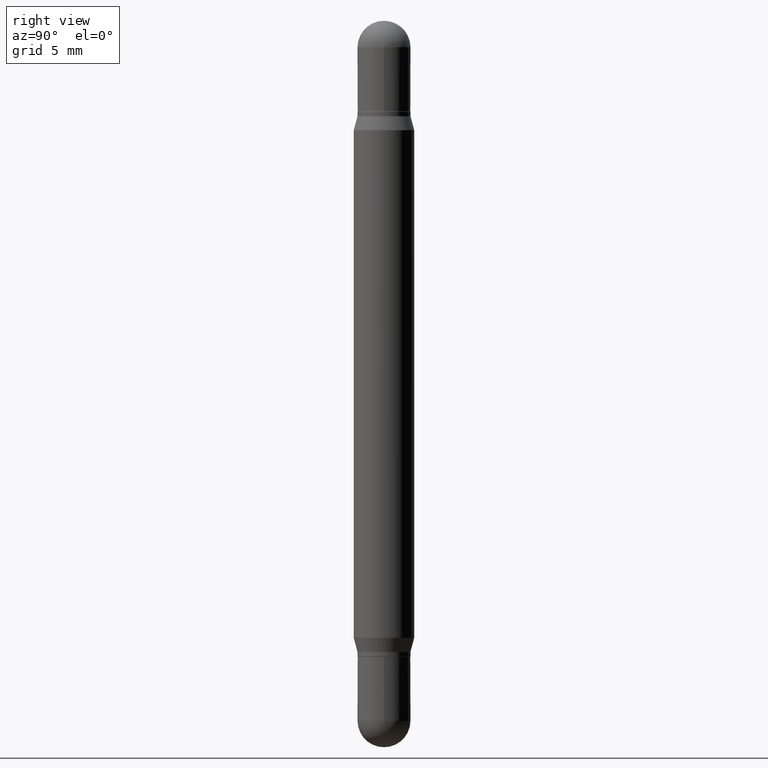
[diagram: clean part render]
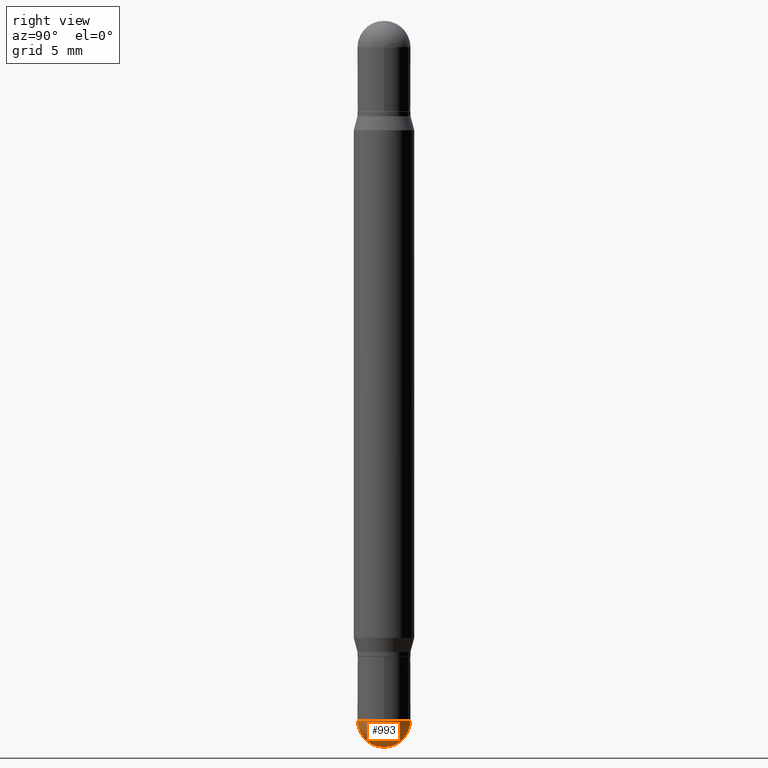
[diagram: same view with one face highlighted and labeled with its STEP entity id]
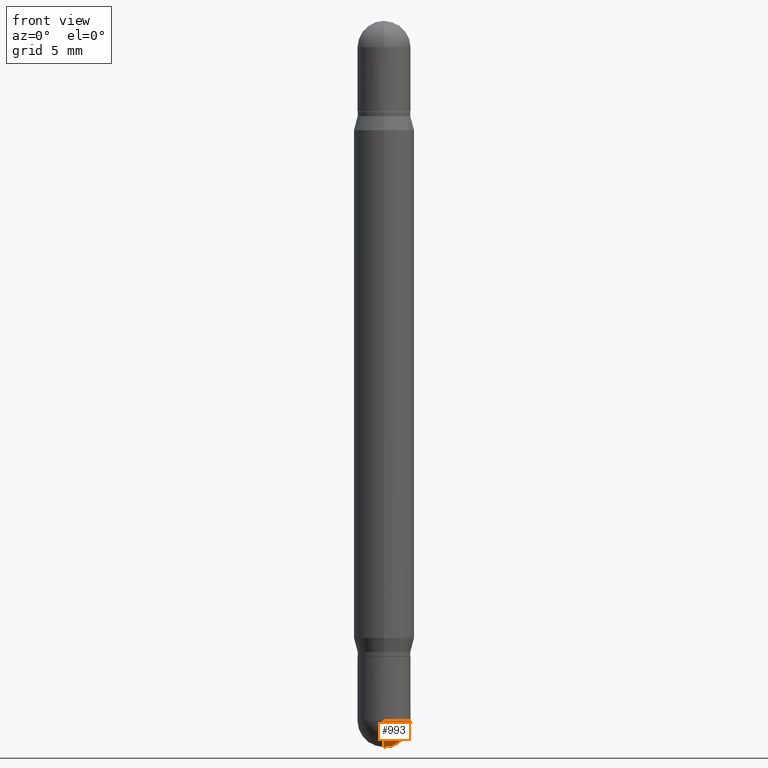
[diagram: same view with one face highlighted and labeled with its STEP entity id]
A machine part, right view. The second image highlights one B-rep face of the part: STEP entity #993.
A second angle (front view) of the same face is appended — the face is thin or edge-on in the first view.
In plain terms, the highlighted spherical surface has radius 1.3894 mm.
Its self-contained STEP definition (entity closure, byte-faithful):
#34 = DIRECTION ( 'NONE',  ( 1.000000000000000000, -7.105427357601001070E-15, 4.926315508542082329E-29 ) ) ;
#47 = CARTESIAN_POINT ( 'NONE',  ( -3.819680584694040760E-16, -0.05470000000000515422, -1.445299999999999807 ) ) ;
#100 = CARTESIAN_POINT ( 'NONE',  ( 3.529758305977566399E-29, -5.052936797021334001E-15, -1.445300000000000029 ) ) ;
#102 = DIRECTION ( 'NONE',  ( 1.000000000000000000, -6.982962677686259611E-15, 0.000000000000000000 ) ) ;
#183 = EDGE_CURVE ( 'NONE', #443, #1012, #908, .T. ) ;
#206 = DIRECTION ( 'NONE',  ( -2.445468806185136597E-29, 3.491481338843145583E-15, 1.000000000000000000 ) ) ;
#214 = AXIS2_PLACEMENT_3D ( 'NONE', #905, #34, #629 ) ;
#221 = CARTESIAN_POINT ( 'NONE',  ( 3.661186569874987869E-29, -5.247270235251722876E-15, -1.500000000000000222 ) ) ;
#252 = DIRECTION ( 'NONE',  ( 1.000000000000000000, -6.982962677686259611E-15, 0.000000000000000000 ) ) ;
#257 = CARTESIAN_POINT ( 'NONE',  ( 0.05470000000000000556, -5.197244546934962984E-15, -1.445300000000000029 ) ) ;
#353 = DIRECTION ( 'NONE',  ( -6.982962677686266711E-15, -1.000000000000000000, 0.000000000000000000 ) ) ;
#354 = AXIS2_PLACEMENT_3D ( 'NONE', #801, #717, #1064 ) ;
#406 = CARTESIAN_POINT ( 'NONE',  ( 3.534436065579377749E-29, -5.046237979029997798E-15, -1.445300000000000029 ) ) ;
#407 = VERTEX_POINT ( 'NONE', #570 ) ;
#443 = VERTEX_POINT ( 'NONE', #47 ) ;
#546 = ORIENTED_EDGE ( 'NONE', *, *, #183, .F. ) ;
#570 = CARTESIAN_POINT ( 'NONE',  ( 3.886668764608108330E-16, 0.05469999999999505119, -1.445300000000000251 ) ) ;
#586 = ORIENTED_EDGE ( 'NONE', *, *, #859, .T. ) ;
#629 = DIRECTION ( 'NONE',  ( 7.105427357601001070E-15, 1.000000000000000000, 0.000000000000000000 ) ) ;
#655 = AXIS2_PLACEMENT_3D ( 'NONE', #100, #788, #353 ) ;
#661 = ORIENTED_EDGE ( 'NONE', *, *, #777, .F. ) ;
#692 = CIRCLE ( 'NONE', #214, 0.05470000000000019291 ) ;
#717 = DIRECTION ( 'NONE',  ( 1.000000000000000000, -6.982962677686265922E-15, 4.883557194083113462E-29 ) ) ;
#750 = DIRECTION ( 'NONE',  ( -2.445468806185136597E-29, 3.491481338843145583E-15, 1.000000000000000000 ) ) ;
#777 = EDGE_CURVE ( 'NONE', #1012, #407, #991, .T. ) ;
#788 = DIRECTION ( 'NONE',  ( -1.000000000000000000, 6.982962677686265922E-15, -4.883557194083112340E-29 ) ) ;
#801 = CARTESIAN_POINT ( 'NONE',  ( 3.529758305977566399E-29, -5.052936797021334001E-15, -1.445300000000000029 ) ) ;
#836 = EDGE_LOOP ( 'NONE', ( #936, #586, #661, #546 ) ) ;
#854 = VERTEX_POINT ( 'NONE', #221 ) ;
#859 = EDGE_CURVE ( 'NONE', #854, #407, #692, .T. ) ;
#873 = AXIS2_PLACEMENT_3D ( 'NONE', #895, #206, #102 ) ;
#886 = SPHERICAL_SURFACE ( 'NONE', #354, 0.05470000000000019291 ) ;
#895 = CARTESIAN_POINT ( 'NONE',  ( 3.534436065579377749E-29, -5.046237979029997798E-15, -1.445300000000000029 ) ) ;
#905 = CARTESIAN_POINT ( 'NONE',  ( 3.529758305977566399E-29, -5.052936797021334001E-15, -1.445300000000000029 ) ) ;
#908 = CIRCLE ( 'NONE', #1056, 0.05470000000000000556 ) ;
#936 = ORIENTED_EDGE ( 'NONE', *, *, #977, .F. ) ;
#977 = EDGE_CURVE ( 'NONE', #854, #443, #1109, .T. ) ;
#991 = CIRCLE ( 'NONE', #873, 0.05470000000000000556 ) ;
#993 = ADVANCED_FACE ( 'NONE', ( #1060 ), #886, .T. ) ;
#1012 = VERTEX_POINT ( 'NONE', #257 ) ;
#1056 = AXIS2_PLACEMENT_3D ( 'NONE', #406, #750, #252 ) ;
#1060 = FACE_OUTER_BOUND ( 'NONE', #836, .T. ) ;
#1064 = DIRECTION ( 'NONE',  ( -6.982962677686265922E-15, -1.000000000000000000, 4.994237648380719522E-15 ) ) ;
#1109 = CIRCLE ( 'NONE', #655, 0.05470000000000019291 ) ;